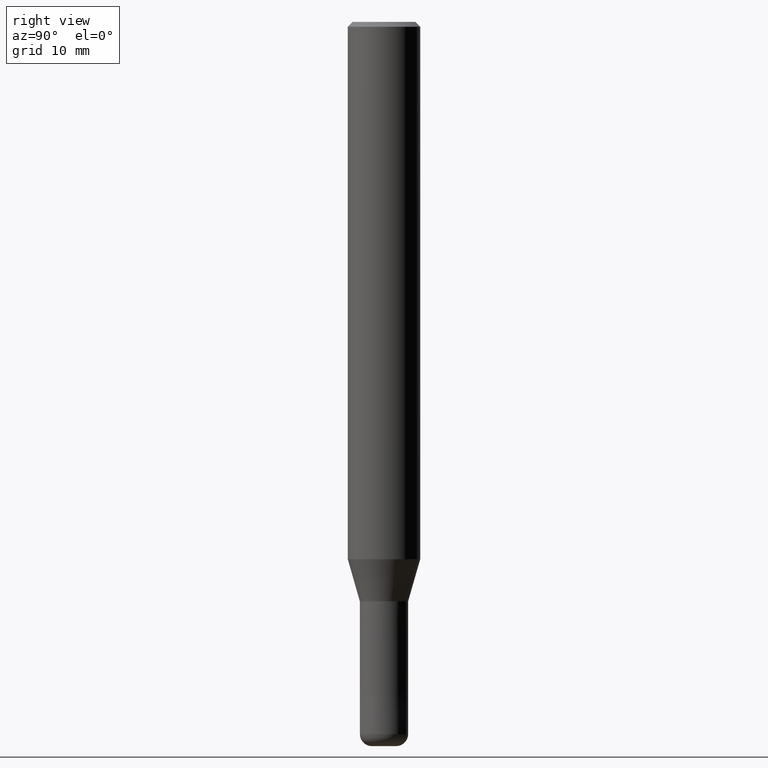
[diagram: clean part render]
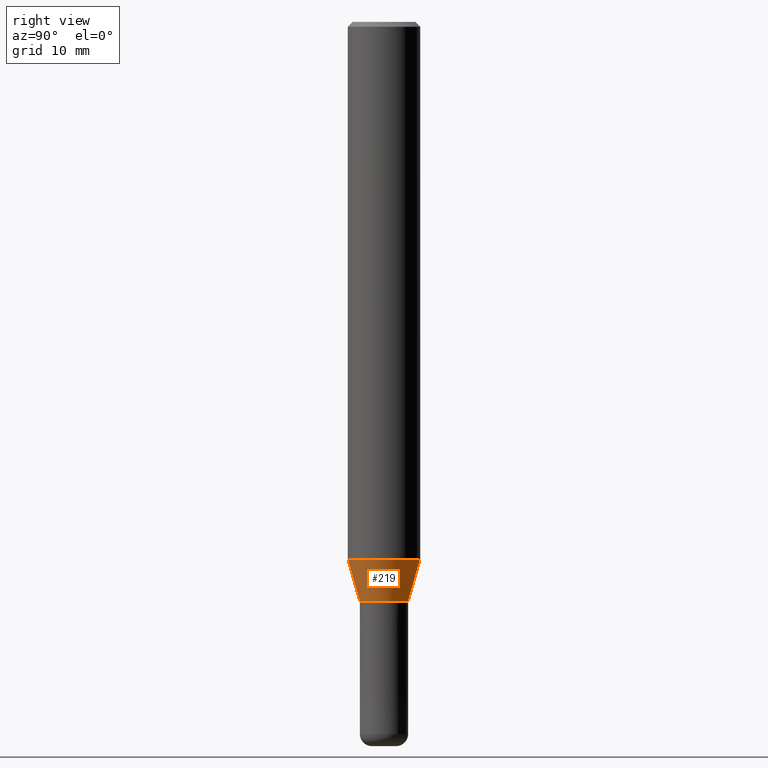
[diagram: same view with one face highlighted and labeled with its STEP entity id]
A machine part, right view. The second image highlights one B-rep face of the part: STEP entity #219.
In plain terms, the highlighted conical surface has half-angle 16.002 deg.
Its self-contained STEP definition (entity closure, byte-faithful):
#129=VERTEX_POINT('',#317);
#131=VERTEX_POINT('',#319);
#139=EDGE_CURVE('',#131,#129,#328,.T.);
#155=EDGE_CURVE('',#161,#131,#347,.T.);
#161=VERTEX_POINT('',#354);
#175=EDGE_CURVE('',#199,#129,#371,.T.);
#199=VERTEX_POINT('',#396);
#219=ADVANCED_FACE('',(#423),#424,.T.);
#225=EDGE_CURVE('',#199,#161,#431,.T.);
#317=CARTESIAN_POINT('',(3.67375783114944E-016,-2.99995,-44.513));
#319=CARTESIAN_POINT('',(2.44915147732706E-016,-1.99995,-48.0));
#328=LINE('',#541,#542);
#347=CIRCLE('',#565,1.99995);
#354=CARTESIAN_POINT('',(0.0,1.99995,-48.0));
#371=CIRCLE('',#593,2.99995);
#396=CARTESIAN_POINT('',(0.0,2.99995,-44.513));
#423=FACE_OUTER_BOUND('',#657,.T.);
#424=CONICAL_SURFACE('',#658,2.49995,0.279284171542493);
#431=LINE('',#666,#667);
#541=CARTESIAN_POINT('',(3.06145465423825E-016,-2.49995,-46.2565));
#542=VECTOR('',#769,1.0);
#565=AXIS2_PLACEMENT_3D('',#803,#804,#805);
#593=AXIS2_PLACEMENT_3D('',#839,#840,#841);
#657=EDGE_LOOP('',(#912,#913,#914,#915));
#658=AXIS2_PLACEMENT_3D('',#916,#917,#918);
#666=CARTESIAN_POINT('',(-3.06145465423825E-016,2.49995,-46.2565));
#667=VECTOR('',#925,1.0);
#769=DIRECTION('',(3.37584327551579E-017,-0.275667626987132,0.961253015304131));
#803=CARTESIAN_POINT('',(0.0,0.0,-48.0));
#804=DIRECTION('',(0.0,0.0,-1.0));
#805=DIRECTION('',(0.0,1.0,0.0));
#839=CARTESIAN_POINT('',(0.0,0.0,-44.513));
#840=DIRECTION('',(0.0,0.0,-1.0));
#841=DIRECTION('',(0.0,1.0,0.0));
#912=ORIENTED_EDGE('',*,*,#225,.F.);
#913=ORIENTED_EDGE('',*,*,#175,.T.);
#914=ORIENTED_EDGE('',*,*,#139,.F.);
#915=ORIENTED_EDGE('',*,*,#155,.F.);
#916=CARTESIAN_POINT('',(0.0,0.0,-46.2565));
#917=DIRECTION('',(-0.0,-0.0,1.0));
#918=DIRECTION('',(0.0,1.0,0.0));
#925=DIRECTION('',(3.37584327551579E-017,-0.275667626987132,-0.961253015304131));